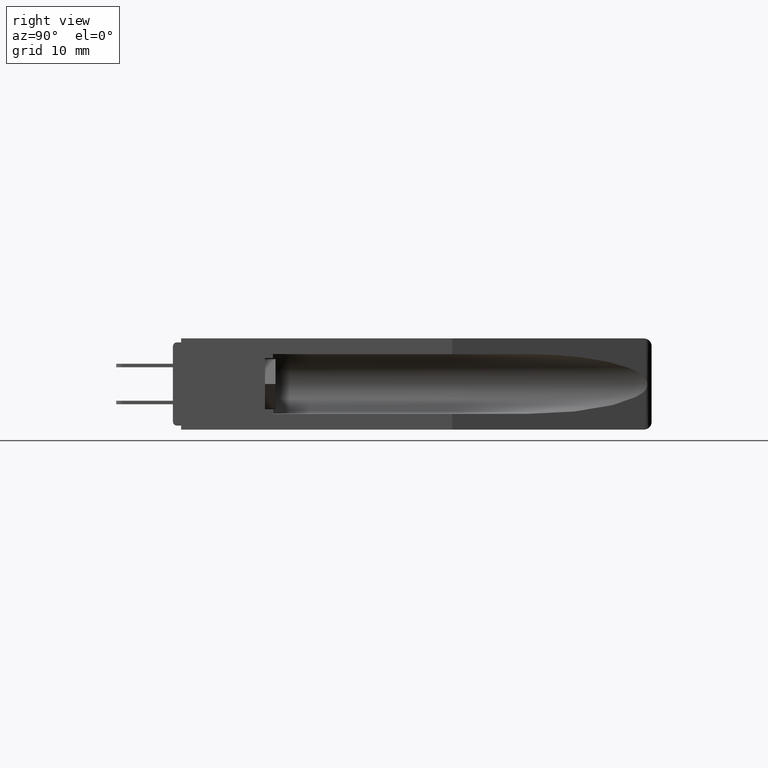
[diagram: clean part render]
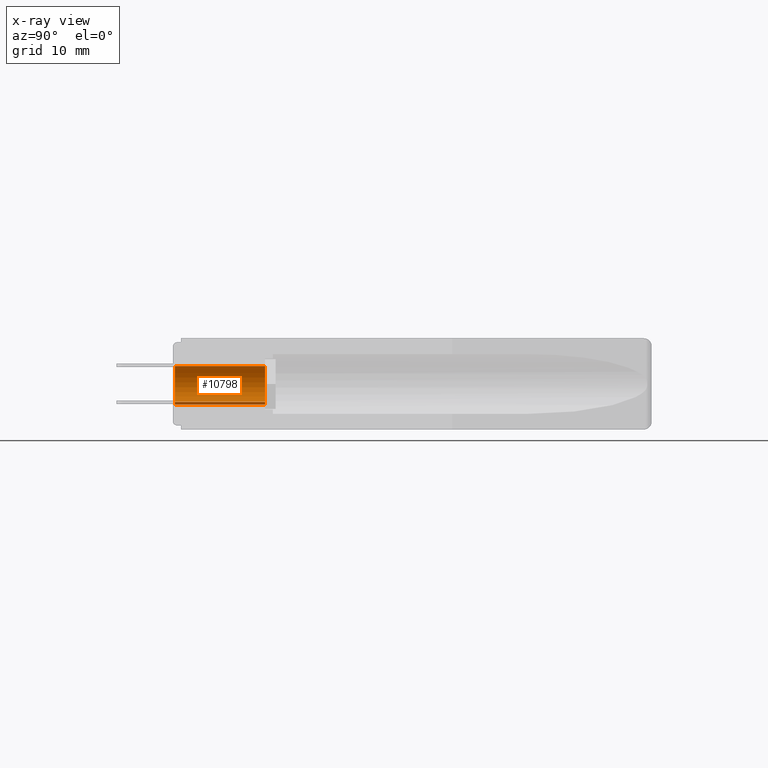
[diagram: x-ray — body ghosted, one internal face saturated and labeled with its STEP entity id]
A machine part, right view, then the same camera in x-ray: the body is ghosted and one INTERNAL B-rep face — a face not visible from any outside direction — is saturated and labeled: STEP entity #10798.
In plain terms, the highlighted cylindrical surface (edge-blend (fillet) strip) has radius 1.9685 mm, axis along (-0, 1, -0).
Its self-contained STEP definition (entity closure, byte-faithful):
#329 = CIRCLE ( 'NONE', #3256, 0.07750000000000012400 ) ;
#444 = CARTESIAN_POINT ( 'NONE',  ( 0.0000000000000000000, 0.3780000000000000600, 0.0000000000000000000 ) ) ;
#1728 = CYLINDRICAL_SURFACE ( 'NONE', #6407, 0.07750000000000012400 ) ;
#1883 = DIRECTION ( 'NONE',  ( -6.548161810916601900E-032, -1.000000000000000000, -1.386669559958809800E-032 ) ) ;
#2042 = FACE_OUTER_BOUND ( 'NONE', #12964, .T. ) ;
#2610 = LINE ( 'NONE', #9932, #13183 ) ;
#2795 = CARTESIAN_POINT ( 'NONE',  ( 9.491012693391975600E-018, 0.3780000000000000600, 0.07749999999999999900 ) ) ;
#2854 = CARTESIAN_POINT ( 'NONE',  ( -1.106639346044904000E-032, 0.3780000000000000600, -0.07749999999999999900 ) ) ;
#3195 = CARTESIAN_POINT ( 'NONE',  ( 0.0000000000000000000, 0.03999999999999998000, 0.0000000000000000000 ) ) ;
#3256 = AXIS2_PLACEMENT_3D ( 'NONE', #3195, #11478, #10358 ) ;
#3281 = DIRECTION ( 'NONE',  ( 0.0000000000000000000, 0.0000000000000000000, 1.000000000000000000 ) ) ;
#3302 = ORIENTED_EDGE ( 'NONE', *, *, #7328, .T. ) ;
#3649 = VERTEX_POINT ( 'NONE', #11744 ) ;
#3674 = CIRCLE ( 'NONE', #10380, 0.07750000000000012400 ) ;
#4003 = EDGE_CURVE ( 'NONE', #10371, #5338, #3674, .T. ) ;
#4067 = EDGE_CURVE ( 'NONE', #3649, #6241, #329, .T. ) ;
#4936 = EDGE_CURVE ( 'NONE', #5338, #6241, #11487, .T. ) ;
#4954 = CARTESIAN_POINT ( 'NONE',  ( 9.491012693391975600E-018, 0.03999999999999998000, 0.07749999999999999900 ) ) ;
#4979 = ORIENTED_EDGE ( 'NONE', *, *, #4067, .T. ) ;
#5338 = VERTEX_POINT ( 'NONE', #2795 ) ;
#5450 = DIRECTION ( 'NONE',  ( -6.548161810916601900E-032, -1.000000000000000000, -1.386669559958809800E-032 ) ) ;
#6057 = DIRECTION ( 'NONE',  ( -6.548161810916601900E-032, -1.000000000000000000, -1.386669559958809800E-032 ) ) ;
#6241 = VERTEX_POINT ( 'NONE', #4954 ) ;
#6407 = AXIS2_PLACEMENT_3D ( 'NONE', #444, #5450, #6534 ) ;
#6534 = DIRECTION ( 'NONE',  ( 0.0000000000000000000, 0.0000000000000000000, -1.000000000000000000 ) ) ;
#7328 = EDGE_CURVE ( 'NONE', #10371, #3649, #2610, .T. ) ;
#8367 = DIRECTION ( 'NONE',  ( 6.548161810916601900E-032, 1.000000000000000000, 1.386669559958809800E-032 ) ) ;
#9116 = CARTESIAN_POINT ( 'NONE',  ( 9.491012693392003300E-018, 0.3780000000000000600, 0.07750000000000012400 ) ) ;
#9386 = CARTESIAN_POINT ( 'NONE',  ( 0.0000000000000000000, 0.3780000000000000600, 0.0000000000000000000 ) ) ;
#9932 = CARTESIAN_POINT ( 'NONE',  ( 0.0000000000000000000, 0.3780000000000000600, -0.07750000000000012400 ) ) ;
#10219 = ORIENTED_EDGE ( 'NONE', *, *, #4003, .F. ) ;
#10358 = DIRECTION ( 'NONE',  ( 0.0000000000000000000, 0.0000000000000000000, 1.000000000000000000 ) ) ;
#10371 = VERTEX_POINT ( 'NONE', #2854 ) ;
#10380 = AXIS2_PLACEMENT_3D ( 'NONE', #9386, #8367, #3281 ) ;
#10798 = ADVANCED_FACE ( 'NONE', ( #2042 ), #1728, .T. ) ;
#11478 = DIRECTION ( 'NONE',  ( 6.548161810916601900E-032, 1.000000000000000000, 1.386669559958809800E-032 ) ) ;
#11487 = LINE ( 'NONE', #9116, #11792 ) ;
#11744 = CARTESIAN_POINT ( 'NONE',  ( -1.106639346044904000E-032, 0.03999999999999998000, -0.07749999999999999900 ) ) ;
#11792 = VECTOR ( 'NONE', #6057, 39.37007874015748100 ) ;
#12964 = EDGE_LOOP ( 'NONE', ( #13210, #10219, #3302, #4979 ) ) ;
#13183 = VECTOR ( 'NONE', #1883, 39.37007874015748100 ) ;
#13210 = ORIENTED_EDGE ( 'NONE', *, *, #4936, .F. ) ;